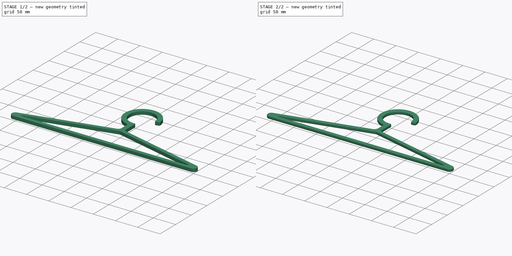
[diagram: build sequence overview — one tinted view per stage of 2, left to right]
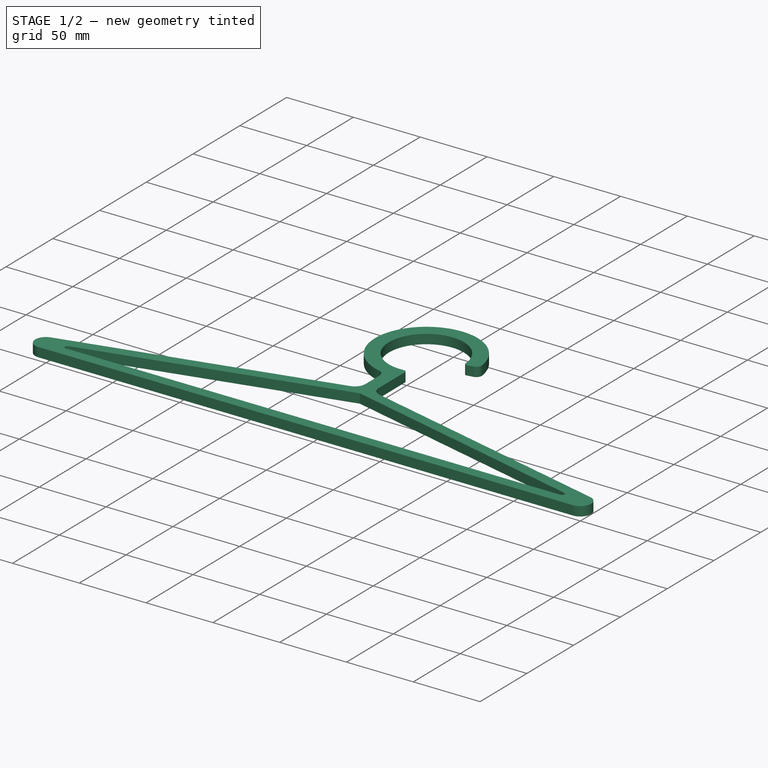
[diagram: stage 1 of 2 — iso view after this stage's code; geometry added in this stage tinted green]
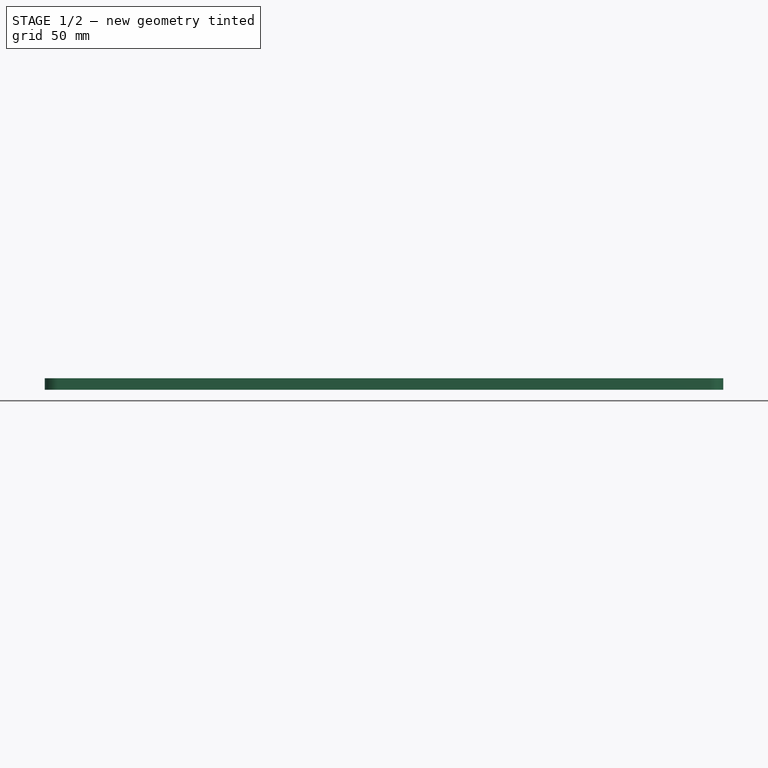
[diagram: stage 1 of 2 — front view after this stage's code; geometry added in this stage tinted green]
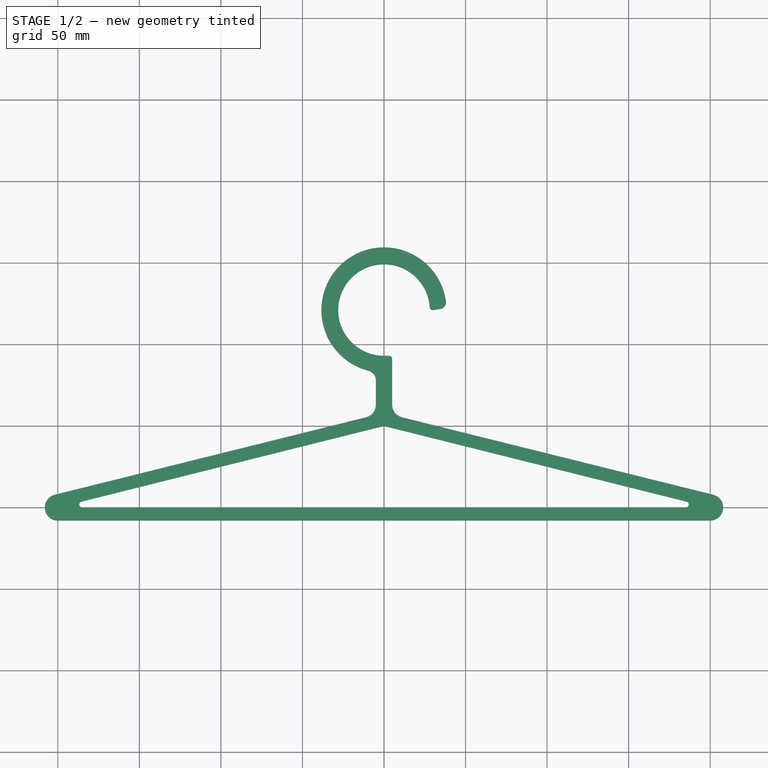
[diagram: stage 1 of 2 — top view after this stage's code; geometry added in this stage tinted green]
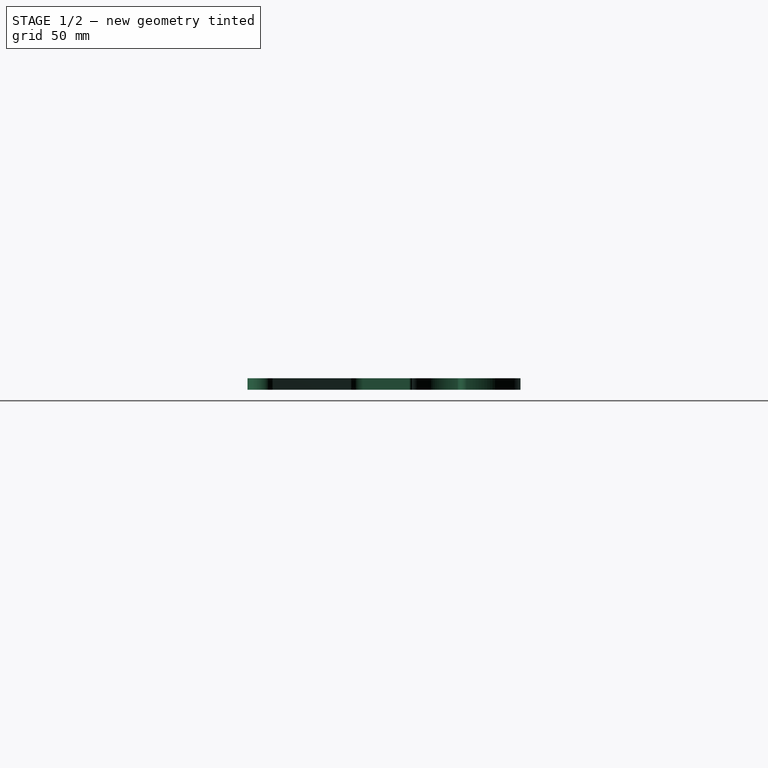
[diagram: stage 1 of 2 — right view after this stage's code; geometry added in this stage tinted green]
FCSTD DOCUMENT  (FreeCAD 0.19RUnknown)
Label: ceintre
License: All rights reserved
LicenseURL: http://en.wikipedia.org/wiki/All_rights_reserved
objects: Sketcher::SketchObject×1, Part::Extrusion×1, Part::Fillet×1
note: 3 computed .brp shape members not serialized (recipe doc carries the construction recipe); baked Part::Feature solids carry a one-line shape summary decoded from their .brp

FEATURE [Sketcher::SketchObject] Sketch
  FullyConstrained = true
  sketch-geometry (39):
    g0: LineSegment StartX=0 StartY=0 StartZ=0 EndX=-200 EndY=0 EndZ=0
    g1: LineSegment StartX=0 StartY=0 StartZ=0 EndX=200 EndY=0 EndZ=0
    g2: LineSegment StartX=0 StartY=0 StartZ=0 EndX=0 EndY=50 EndZ=0
    g3: LineSegment StartX=0 StartY=50 StartZ=0 EndX=-200 EndY=0 EndZ=0
    g4: LineSegment StartX=0 StartY=50 StartZ=0 EndX=200 EndY=0 EndZ=0
    g5: LineSegment StartX=0 StartY=0 StartZ=0 EndX=0 EndY=-8 EndZ=0
    g6: LineSegment StartX=0 StartY=-8 StartZ=0 EndX=-200 EndY=-8 EndZ=0
    g7: ArcOfCircle CenterX=-200 CenterY=0 CenterZ=0 NormalX=0 NormalY=0 NormalZ=1 AngleXU=0 Radius=8 StartAngle=1.81462 EndAngle=4.71239
    g8: LineSegment StartX=-201.931 StartY=7.76337 StartZ=0 EndX=0 EndY=58 EndZ=0
    g9: LineSegment StartX=0 StartY=58 StartZ=0 EndX=0 EndY=50 EndZ=0
    g10: LineSegment StartX=0 StartY=58 StartZ=0 EndX=201.931 EndY=7.76336 EndZ=0
    g11: LineSegment StartX=0 StartY=-8 StartZ=0 EndX=200 EndY=-8 EndZ=0
    g12: ArcOfCircle CenterX=200 CenterY=0 CenterZ=0 NormalX=0 NormalY=0 NormalZ=1 AngleXU=0 Radius=8 StartAngle=4.71239 EndAngle=7.61015
    g13: LineSegment StartX=0 StartY=50 StartZ=0 EndX=-185.448 EndY=3.63803 EndZ=0
    g14: LineSegment StartX=0 StartY=0 StartZ=0 EndX=-185 EndY=1.1e-15 EndZ=0
    g15: ArcOfCircle CenterX=-185 CenterY=1.84658 CenterZ=0 NormalX=0 NormalY=0 NormalZ=1 AngleXU=0 Radius=1.84658 StartAngle=1.81577 EndAngle=4.71239
    g16: LineSegment StartX=0 StartY=50 StartZ=0 EndX=185.448 EndY=3.63803 EndZ=0
    g17: LineSegment StartX=185 StartY=0 StartZ=0 EndX=0 EndY=0 EndZ=0
    g18: ArcOfCircle CenterX=185 CenterY=1.84658 CenterZ=0 NormalX=0 NormalY=0 NormalZ=1 AngleXU=0 Radius=1.84658 StartAngle=4.71239 EndAngle=7.609
    g19: LineSegment StartX=-5 StartY=83 StartZ=0 EndX=5 EndY=83 EndZ=0
    g20: LineSegment StartX=0 StartY=121.06 StartZ=0 EndX=28 EndY=121.06 EndZ=0
    g21: LineSegment StartX=-5.2e-15 StartY=83 StartZ=0 EndX=-5.2e-15 EndY=93 EndZ=0
    g22: ArcOfCircle CenterX=0 CenterY=121.06 CenterZ=0 NormalX=0 NormalY=0 NormalZ=1 AngleXU=0 Radius=28.0603 StartAngle=0.0655691 EndAngle=4.71239
    g23: ArcOfCircle CenterX=0 CenterY=121.06 CenterZ=0 NormalX=0 NormalY=0 NormalZ=1 AngleXU=0 Radius=38.3873 StartAngle=0.137621 EndAngle=4.84301
    g24: LineSegment StartX=34.7568 StartY=121.839 StartZ=0 EndX=30.343 EndY=121.06 EndZ=0
    g25: LineSegment StartX=-5 StartY=78 StartZ=0 EndX=-5 EndY=63 EndZ=0
    g26: LineSegment StartX=5 StartY=83 StartZ=0 EndX=5 EndY=63 EndZ=0
    g27: LineSegment StartX=-11.0592 StartY=55.2487 StartZ=0 EndX=-201.931 EndY=7.76337 EndZ=0
    g28: LineSegment StartX=11.0592 StartY=55.2487 StartZ=0 EndX=201.931 EndY=7.76336 EndZ=0
    g29: ArcOfCircle CenterX=0 CenterY=121.06 CenterZ=0 NormalX=0 NormalY=0 NormalZ=1 AngleXU=0 Radius=38.3873 StartAngle=0.137621 EndAngle=4.46067
    g30: ArcOfCircle CenterX=-12.9876 CenterY=63 CenterZ=0 NormalX=0 NormalY=0 NormalZ=1 AngleXU=0 Radius=7.98759 StartAngle=4.95622 EndAngle=6.28319
    g31: ArcOfCircle CenterX=12.9876 CenterY=63 CenterZ=0 NormalX=0 NormalY=0 NormalZ=1 AngleXU=0 Radius=7.98759 StartAngle=3.14159 EndAngle=4.46856
    g32: ArcOfCircle CenterX=-11.0742 CenterY=78 CenterZ=0 NormalX=0 NormalY=0 NormalZ=1 AngleXU=0 Radius=6.07421 StartAngle=-9e-16 EndAngle=1.31907
    g33: LineSegment StartX=-5 StartY=78 StartZ=0 EndX=5 EndY=78 EndZ=0
    g34: LineSegment StartX=-5.2e-15 StartY=93 StartZ=0 EndX=3 EndY=93 EndZ=0
    g35: LineSegment StartX=5 StartY=83 StartZ=0 EndX=5 EndY=91 EndZ=0
    g36: ArcOfCircle CenterX=3 CenterY=91 CenterZ=0 NormalX=0 NormalY=0 NormalZ=1 AngleXU=0 Radius=2 StartAngle=1.8e-15 EndAngle=1.5708
    g37: ArcOfCircle CenterX=29.9957 CenterY=123.03 CenterZ=0 NormalX=0 NormalY=0 NormalZ=1 AngleXU=0 Radius=2 StartAngle=3.20716 EndAngle=4.88692
    g38: ArcOfCircle CenterX=34.0622 CenterY=125.778 CenterZ=0 NormalX=0 NormalY=0 NormalZ=1 AngleXU=0 Radius=4 StartAngle=4.88692 EndAngle=6.42081
  constraints (94):
    c: Coincident(g0,g-1)
    c: PointOnObject(g0,g-1)
    c: Coincident(g1,g0)
    c: Symmetric(g0,g1,g0)
    c: DistanceX(g0,g0) = 200
    c: Coincident(g2,g0)
    c: PointOnObject(g2,g-2)
    c: DistanceY(g2,g2) = 50
    c: Coincident(g3,g2)
    c: Coincident(g3,g0)
    c: Coincident(g4,g3)
    c: Coincident(g4,g1)
    c: Coincident(g5,g2)
    c: PointOnObject(g5,g-2)
    c: DistanceY(g5,g5) = 8
    c: Coincident(g6,g5)
    c: Horizontal(g6)
    c: Coincident(g7,g0)
    c: Coincident(g7,g6)
    c: Coincident(g8,g7)
    c: PointOnObject(g8,g-2)
    c: Coincident(g9,g8)
    c: Coincident(g9,g2)
    c: DistanceY(g9,g9) = 8
    c: Tangent(g7,g8)
    c: Coincident(g10,g8)
    c: Coincident(g11,g6)
    c: Symmetric(g11,g6,g6)
    c: Coincident(g12,g1)
    c: Tangent(g10,g12) = 1.5708
    c: Coincident(g13,g2)
    c: Coincident(g14,g-1)
    c: Tangent(g14,g15) = 1.5708
    c: Tangent(g13,g15) = -1.5708
    c: Coincident(g16,g13)
    c: Coincident(g17,g14)
    c: Tangent(g16,g18) = 1.5708
    c: Tangent(g17,g18) = 1.5708
    c: Symmetric(g19,g19,g-2)
    c: DistanceX(g19,g19) = 10
    c: Horizontal(g20)
    c: PointOnObject(g21,g-2)
    c: Vertical(g21)
    c: Equal(g21,g19)
    c: PointOnObject(g21,g19)
    c: Coincident(g22,g21)
    c: Coincident(g23,g22)
    c: Coincident(g23,g19)
    c: Angle(g24,g20) = 2.96706
    c: Coincident(g20,g22)
    c: DistanceX(g20,g20) = 28
    c: DistanceY(g8,g21) = 25
    c: Vertical(g25)
    c: Coincident(g26,g19)
    c: Vertical(g26)
    c: Coincident(g27,g7)
    c: Coincident(g28,g12)
    c: Coincident(g29,g22)
    c: PointOnObject(g13,g3)
    c: PointOnObject(g16,g4)
    c: PointOnObject(g17,g1)
    c: Symmetric(g15,g18,g2)
    c: DistanceX(g7,g14) = 15
    c: Tangent(g12,g11) = -1.5708
    c: Tangent(g27,g30) = 1.5708
    c: Tangent(g25,g30) = 1.5708
    c: Tangent(g26,g31) = -1.5708
    c: Tangent(g28,g31) = -1.5708
    c: Symmetric(g30,g31,g-2)
    c: PointOnObject(g27,g8)
    c: DistanceY(g8,g26) = 5
    c: Tangent(g25,g32) = 1.5708
    c: Tangent(g29,g32) = 1.5708
    c: DistanceY(g32,g21) = 5
    c: Coincident(g33,g25)
    c: PointOnObject(g33,g26)
    c: Symmetric(g33,g25,g-2)
    c: PointOnObject(g22,g-2)
    c: Coincident(g34,g22)
    c: Horizontal(g34)
    c: Coincident(g35,g26)
    c: Vertical(g35)
    c: Tangent(g34,g36) = 1.5708
    c: Tangent(g35,g36) = -1.5708
    c: DistanceY(g36,g34) = 2
    c: Tangent(g22,g37) = 1.5708
    c: Tangent(g24,g37) = 1.5708
    c: DistanceX(g22,g20) = 0
    c: Distance(g22,g37) = 2
    c: DistanceY(g20,g24) = 0
    c: Tangent(g29,g38) = -1.5708
    c: Tangent(g24,g38) = 1.5708
    c: Coincident(g23,g29)
    c: Distance(g38,g29) = 4
FEATURE [Part::Extrusion] Extrude
  Base = -> Sketch
  Dir = (0,0,1)
  DirMode = 2
  FaceMakerClass = Part::FaceMakerBullseye
  LengthFwd = 7
  LengthRev = 0
  Solid = true
  Symmetric = false
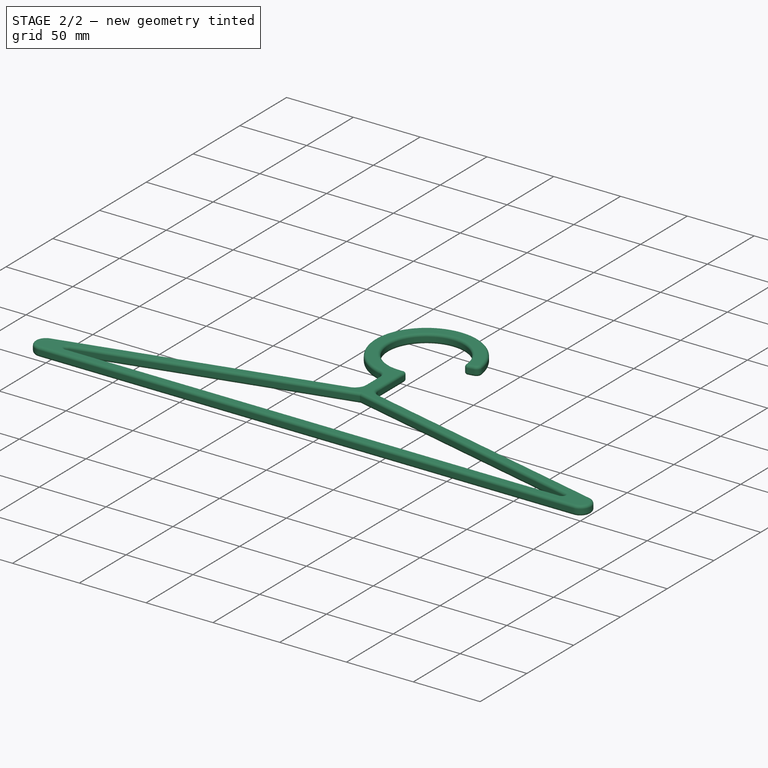
[diagram: stage 2 of 2 — iso view after this stage's code; geometry added in this stage tinted green]
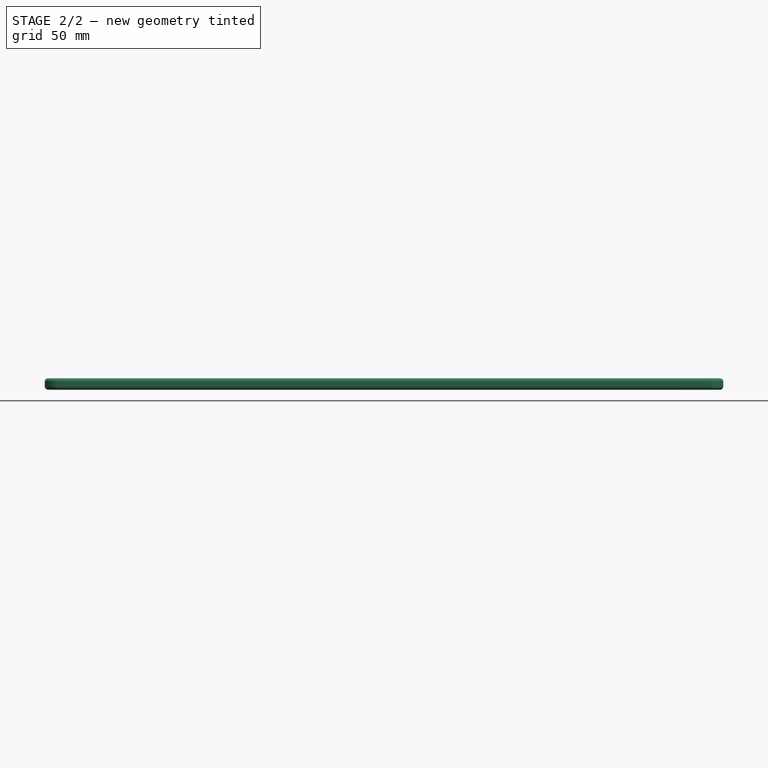
[diagram: stage 2 of 2 — front view after this stage's code; geometry added in this stage tinted green]
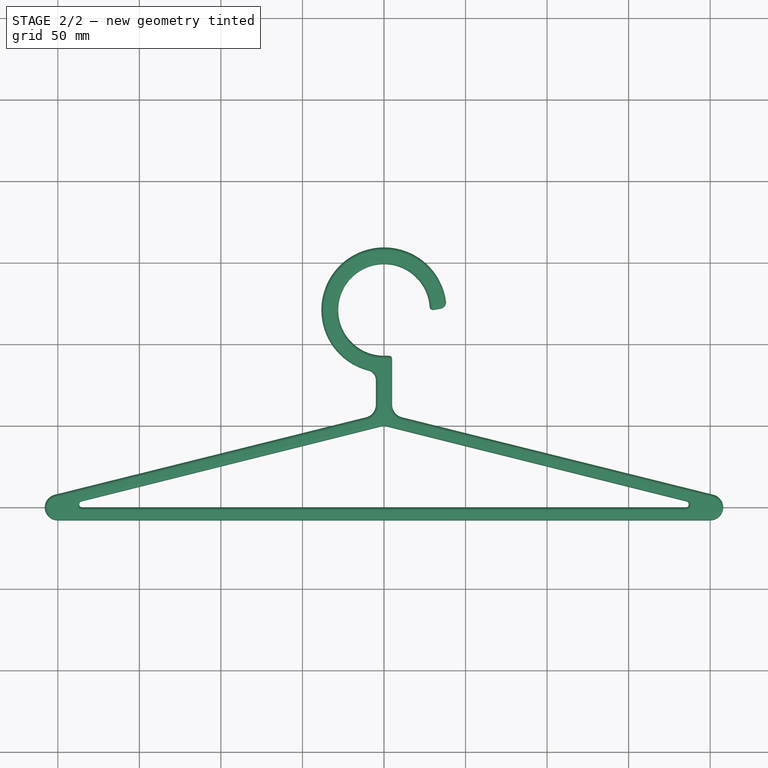
[diagram: stage 2 of 2 — top view after this stage's code; geometry added in this stage tinted green]
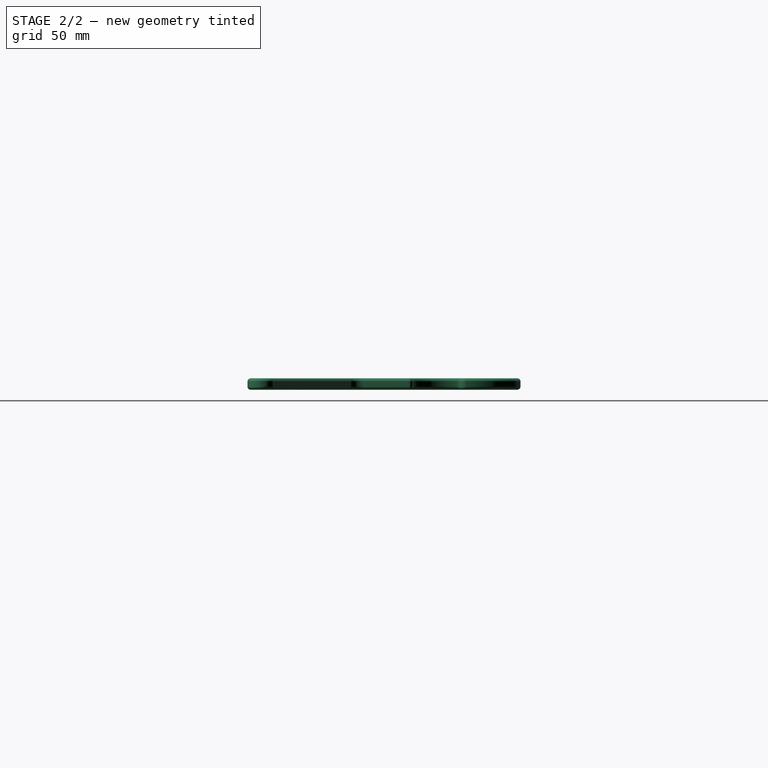
[diagram: stage 2 of 2 — right view after this stage's code; geometry added in this stage tinted green]
FEATURE [Part::Fillet] Fillet
  Base = -> Extrude
  Edges = 50 edges r=2: [Edge3,Edge4,Edge6,Edge7,Edge9,Edge10,Edge12,Edge13,Edge15,Edge16,Edge18,Edge19,Edge21,Edge22,Edge24,Edge25,Edge27,Edge28,Edge30,Edge31,Edge33,Edge34,Edge36,Edge37,Edge39,Edge40,Edge42,Edge43,Edge45,Edge46,Edge48,Edge49,Edge51,Edge52,Edge54,Edge55,Edge56,Edge57,Edge60,Edge61,Edge63,Edge64,Edge66,+7 more]
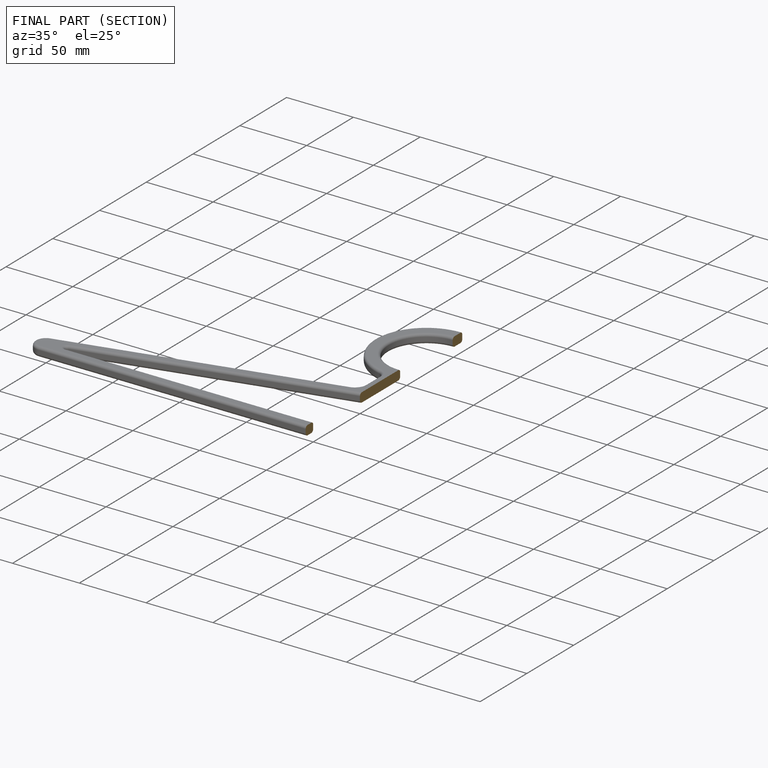
[diagram: finished part — half-section view (interior)]
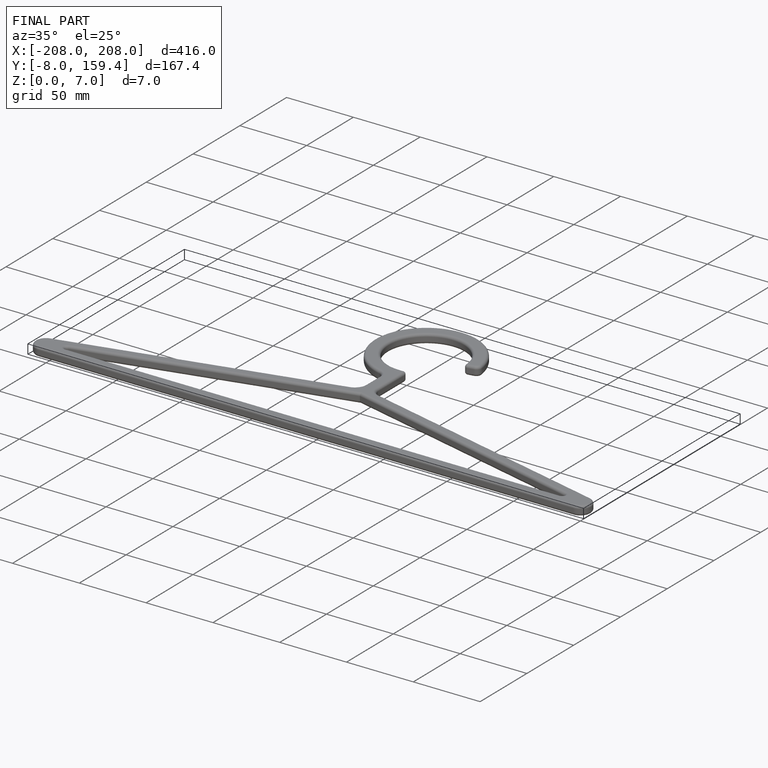
[diagram: finished part — iso view with bounding-box wireframe]
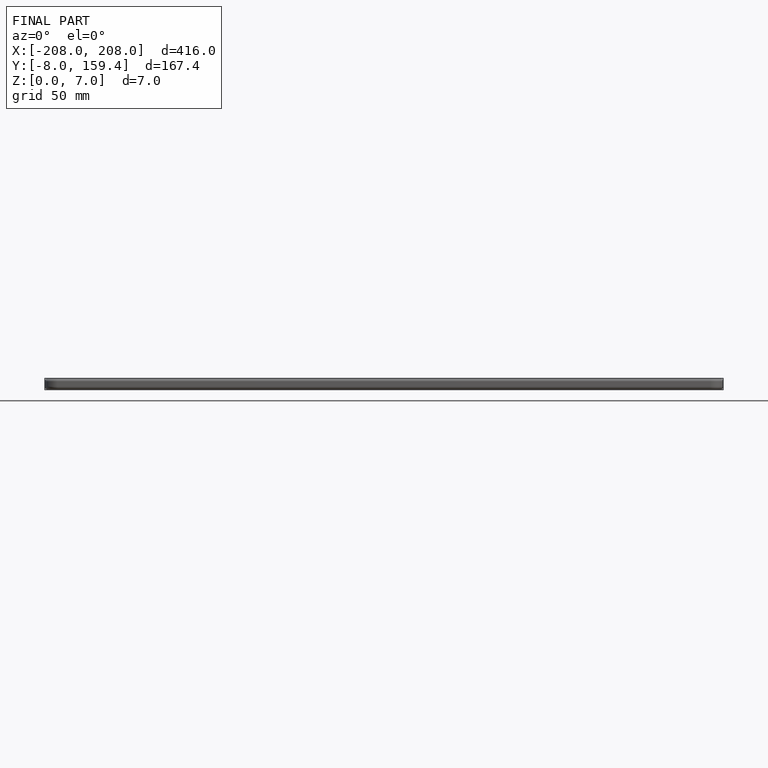
[diagram: finished part — front view with bounding-box wireframe]
